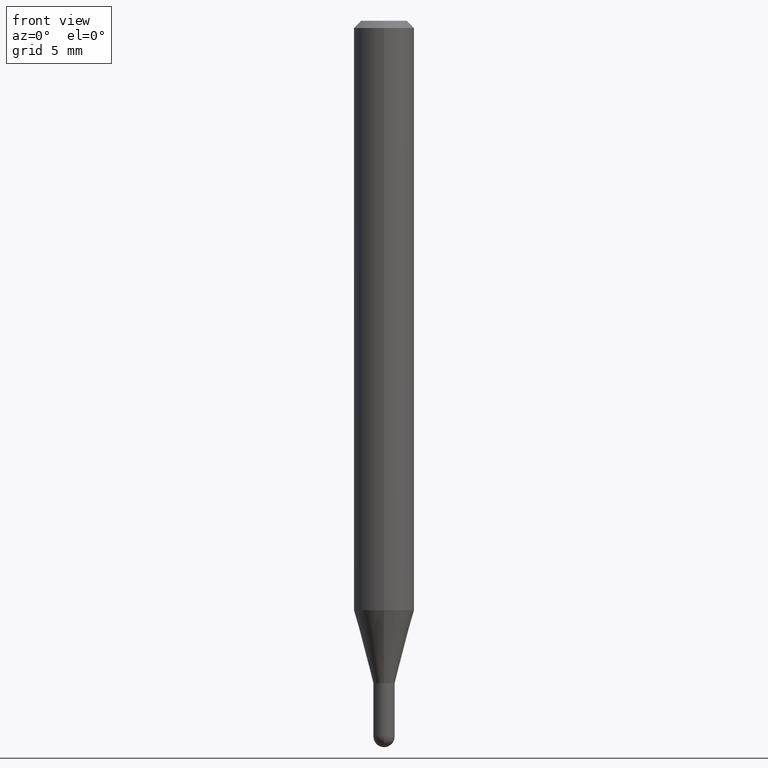
[diagram: clean part render]
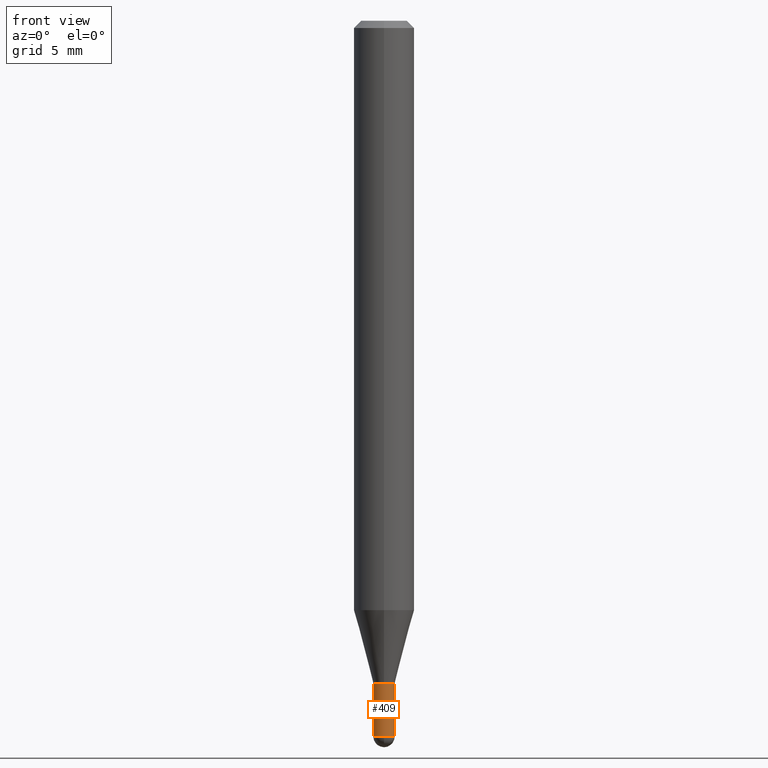
[diagram: same view with one face highlighted and labeled with its STEP entity id]
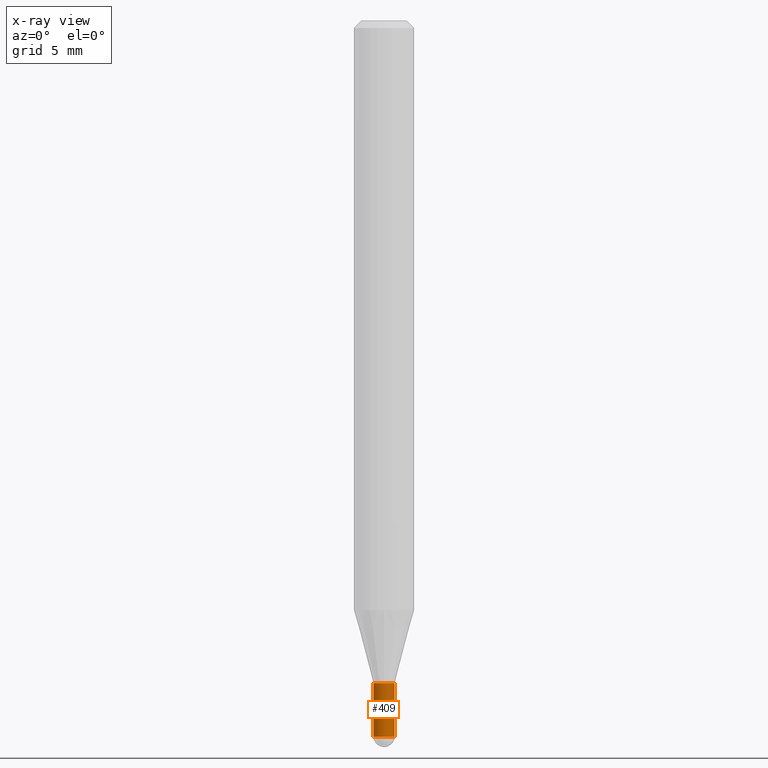
[diagram: x-ray of the same camera — body ghosted, the highlighted face saturated]
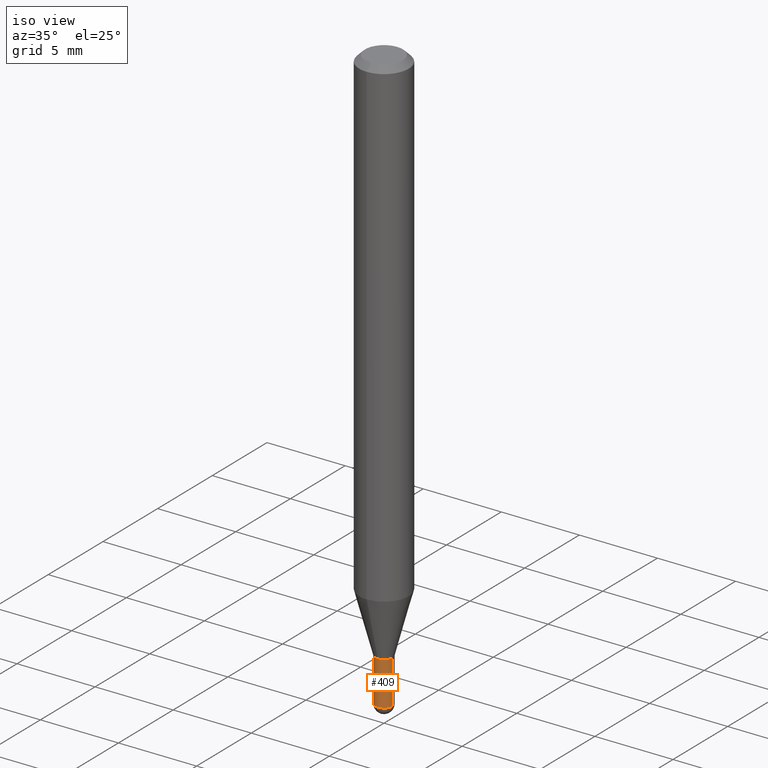
[diagram: same view with one face highlighted and labeled with its STEP entity id]
A machine part, front view. The second image highlights one B-rep face of the part: STEP entity #409.
The next image is the same camera in x-ray: the body ghosted, the highlighted face saturated — about 0% of this face is hidden behind the body in this view.
A second angle (iso view) of the same face is appended — the face is thin or edge-on in the first view.
In plain terms, the highlighted cylindrical surface (edge-blend (fillet) strip) has radius 0.5588 mm, axis along (-0, 0, 1).
Its self-contained STEP definition (entity closure, byte-faithful):
#35 = VERTEX_POINT ( 'NONE', #280 ) ;
#36 = LINE ( 'NONE', #201, #155 ) ;
#38 = EDGE_CURVE ( 'NONE', #323, #432, #480, .T. ) ;
#40 = VERTEX_POINT ( 'NONE', #444 ) ;
#43 = ORIENTED_EDGE ( 'NONE', *, *, #316, .T. ) ;
#47 = DIRECTION ( 'NONE',  ( -2.445468806185136597E-29, 3.491481338843145583E-15, 1.000000000000000000 ) ) ;
#54 = CIRCLE ( 'NONE', #205, 0.02199999999999999872 ) ;
#64 = EDGE_CURVE ( 'NONE', #323, #40, #354, .T. ) ;
#79 = CARTESIAN_POINT ( 'NONE',  ( 3.614402895541633401E-29, -5.160409418810170442E-15, -1.478000000000000425 ) ) ;
#110 = EDGE_LOOP ( 'NONE', ( #446, #358, #43, #487, #425 ) ) ;
#112 = CARTESIAN_POINT ( 'NONE',  ( 3.345401326861266963E-29, -4.776346471537423880E-15, -1.368000000000000105 ) ) ;
#115 = AXIS2_PLACEMENT_3D ( 'NONE', #79, #47, #265 ) ;
#117 = FACE_OUTER_BOUND ( 'NONE', #110, .T. ) ;
#123 = CARTESIAN_POINT ( 'NONE',  ( 3.614402895541633401E-29, -5.160409418810170442E-15, -1.478000000000000425 ) ) ;
#126 = DIRECTION ( 'NONE',  ( -2.445468806185136597E-29, 3.491481338843145583E-15, 1.000000000000000000 ) ) ;
#153 = DIRECTION ( 'NONE',  ( 1.000000000000000000, -6.982962677686245411E-15, 0.000000000000000000 ) ) ;
#155 = VECTOR ( 'NONE', #397, 39.37007874015748143 ) ;
#161 = DIRECTION ( 'NONE',  ( -2.445468806185136597E-29, 3.491481338843145583E-15, 1.000000000000000000 ) ) ;
#192 = DIRECTION ( 'NONE',  ( 1.000000000000000000, -6.982962677686245411E-15, 0.000000000000000000 ) ) ;
#194 = DIRECTION ( 'NONE',  ( -2.445468806185136597E-29, 3.491481338843145583E-15, 1.000000000000000000 ) ) ;
#201 = CARTESIAN_POINT ( 'NONE',  ( 0.02199999999999999872, -1.536251789090978361E-16, 1.072758890675105930E-30 ) ) ;
#205 = AXIS2_PLACEMENT_3D ( 'NONE', #123, #126, #192 ) ;
#235 = CARTESIAN_POINT ( 'NONE',  ( 0.000000000000000000, 0.000000000000000000, 0.000000000000000000 ) ) ;
#242 = VERTEX_POINT ( 'NONE', #374 ) ;
#265 = DIRECTION ( 'NONE',  ( 1.000000000000000000, -6.982962677686245411E-15, 0.000000000000000000 ) ) ;
#270 = EDGE_CURVE ( 'NONE', #432, #242, #299, .T. ) ;
#271 = AXIS2_PLACEMENT_3D ( 'NONE', #112, #161, #153 ) ;
#273 = CYLINDRICAL_SURFACE ( 'NONE', #329, 0.02199999999999999872 ) ;
#280 = CARTESIAN_POINT ( 'NONE',  ( 0.02199999999999999872, -5.122003124082894208E-15, -1.478000000000000425 ) ) ;
#283 = CARTESIAN_POINT ( 'NONE',  ( -0.02199999999999999872, 1.563194018672220318E-16, -1.082165719856079240E-30 ) ) ;
#299 = CIRCLE ( 'NONE', #271, 0.02199999999999999872 ) ;
#316 = EDGE_CURVE ( 'NONE', #40, #35, #54, .T. ) ;
#322 = CARTESIAN_POINT ( 'NONE',  ( -0.02199999999999999872, -4.812058543306574981E-15, -1.368000000000000105 ) ) ;
#323 = VERTEX_POINT ( 'NONE', #429 ) ;
#329 = AXIS2_PLACEMENT_3D ( 'NONE', #235, #194, #353 ) ;
#350 = EDGE_CURVE ( 'NONE', #35, #242, #36, .T. ) ;
#353 = DIRECTION ( 'NONE',  ( 1.000000000000000000, -6.982962677686265922E-15, 4.876176775795936353E-29 ) ) ;
#354 = CIRCLE ( 'NONE', #115, 0.02199999999999999872 ) ;
#358 = ORIENTED_EDGE ( 'NONE', *, *, #64, .T. ) ;
#374 = CARTESIAN_POINT ( 'NONE',  ( 0.02199999999999999872, -4.929971650446520927E-15, -1.368000000000000105 ) ) ;
#397 = DIRECTION ( 'NONE',  ( -2.445468806185136877E-29, 3.491481338843145188E-15, 1.000000000000000000 ) ) ;
#401 = DIRECTION ( 'NONE',  ( -2.445468806185136877E-29, 3.491481338843145188E-15, 1.000000000000000000 ) ) ;
#409 = ADVANCED_FACE ( 'NONE', ( #117 ), #273, .T. ) ;
#425 = ORIENTED_EDGE ( 'NONE', *, *, #270, .F. ) ;
#429 = CARTESIAN_POINT ( 'NONE',  ( -0.02199999999999999872, -4.812058543306574981E-15, -1.478000000000000425 ) ) ;
#432 = VERTEX_POINT ( 'NONE', #322 ) ;
#444 = CARTESIAN_POINT ( 'NONE',  ( -1.536251789090615978E-16, -0.02200000000000514391, -1.478000000000000425 ) ) ;
#446 = ORIENTED_EDGE ( 'NONE', *, *, #38, .F. ) ;
#467 = VECTOR ( 'NONE', #401, 39.37007874015748143 ) ;
#480 = LINE ( 'NONE', #283, #467 ) ;
#487 = ORIENTED_EDGE ( 'NONE', *, *, #350, .T. ) ;